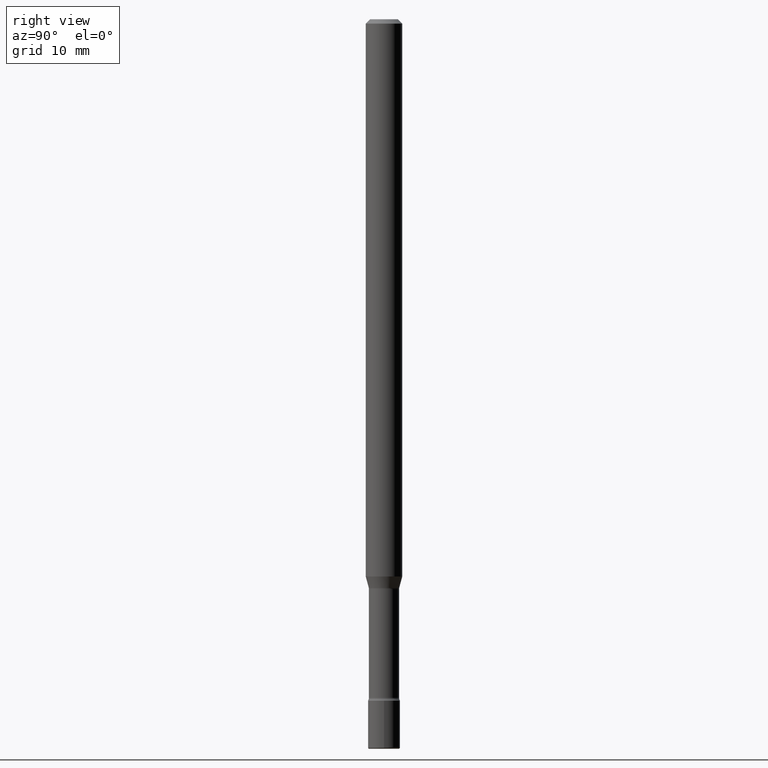
[diagram: clean part render]
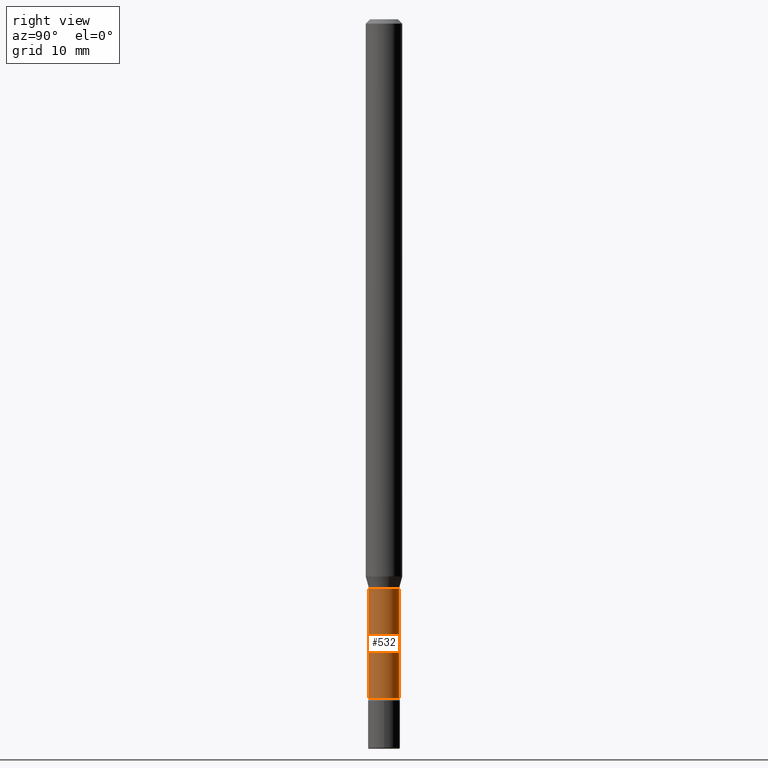
[diagram: same view with one face highlighted and labeled with its STEP entity id]
A machine part, right view. The second image highlights one B-rep face of the part: STEP entity #532.
In plain terms, the highlighted cylindrical surface (edge-blend (fillet) strip) has radius 1.3132 mm, axis along (-0, 0, 1).
Its self-contained STEP definition (entity closure, byte-faithful):
#9 = LINE ( 'NONE', #197, #250 ) ;
#23 = AXIS2_PLACEMENT_3D ( 'NONE', #267, #354, #224 ) ;
#33 = DIRECTION ( 'NONE',  ( -6.982962677686266711E-15, -1.000000000000000000, 5.284038672464726492E-15 ) ) ;
#63 = FACE_OUTER_BOUND ( 'NONE', #220, .T. ) ;
#73 = CYLINDRICAL_SURFACE ( 'NONE', #530, 0.05169999999999998902 ) ;
#104 = CARTESIAN_POINT ( 'NONE',  ( -1.169113584055446105E-44, 1.669184350826100908E-30, 4.780733988912460139E-16 ) ) ;
#108 = DIRECTION ( 'NONE',  ( -2.445442429917292137E-29, 3.491519111159943192E-15, 1.000000000000000000 ) ) ;
#113 = DIRECTION ( 'NONE',  ( -6.982962677686266711E-15, -1.000000000000000000, 3.491519111159944375E-15 ) ) ;
#137 = DIRECTION ( 'NONE',  ( -2.445442429917292137E-29, 3.491519111159943192E-15, 1.000000000000000000 ) ) ;
#162 = EDGE_CURVE ( 'NONE', #419, #368, #477, .T. ) ;
#165 = CARTESIAN_POINT ( 'NONE',  ( -3.610191704363799049E-16, -0.05169999999999998902, 6.585849369382151154E-16 ) ) ;
#169 = VERTEX_POINT ( 'NONE', #567 ) ;
#197 = CARTESIAN_POINT ( 'NONE',  ( 3.673505943879716688E-16, 0.05169999999999998902, 2.975618608442770603E-16 ) ) ;
#220 = EDGE_LOOP ( 'NONE', ( #284, #269, #441, #346 ) ) ;
#224 = DIRECTION ( 'NONE',  ( -6.982962677686266711E-15, -1.000000000000000000, 5.284038672464726492E-15 ) ) ;
#250 = VECTOR ( 'NONE', #108, 39.37007874015748143 ) ;
#254 = DIRECTION ( 'NONE',  ( -2.445442429917292137E-29, 3.491519111159942797E-15, 1.000000000000000000 ) ) ;
#266 = EDGE_CURVE ( 'NONE', #169, #368, #9, .T. ) ;
#267 = CARTESIAN_POINT ( 'NONE',  ( 4.773441967392791886E-29, -6.815357274932263739E-15, -1.951974787463810923 ) ) ;
#268 = CARTESIAN_POINT ( 'NONE',  ( 3.673505943880287133E-16, 0.05169999999999318890, -1.951974787463811367 ) ) ;
#269 = ORIENTED_EDGE ( 'NONE', *, *, #266, .T. ) ;
#274 = VECTOR ( 'NONE', #137, 39.37007874015748143 ) ;
#284 = ORIENTED_EDGE ( 'NONE', *, *, #314, .T. ) ;
#287 = LINE ( 'NONE', #165, #274 ) ;
#288 = VERTEX_POINT ( 'NONE', #495 ) ;
#314 = EDGE_CURVE ( 'NONE', #288, #169, #527, .T. ) ;
#321 = DIRECTION ( 'NONE',  ( -2.445442429917292137E-29, 3.491519111159942797E-15, 1.000000000000000000 ) ) ;
#334 = CARTESIAN_POINT ( 'NONE',  ( -3.610191704363322281E-16, -0.05170000000000680995, -1.951974787463810701 ) ) ;
#346 = ORIENTED_EDGE ( 'NONE', *, *, #394, .F. ) ;
#354 = DIRECTION ( 'NONE',  ( -2.445442429917292137E-29, 3.491519111159942797E-15, 1.000000000000000000 ) ) ;
#368 = VERTEX_POINT ( 'NONE', #268 ) ;
#394 = EDGE_CURVE ( 'NONE', #288, #419, #287, .T. ) ;
#419 = VERTEX_POINT ( 'NONE', #334 ) ;
#441 = ORIENTED_EDGE ( 'NONE', *, *, #162, .F. ) ;
#477 = CIRCLE ( 'NONE', #23, 0.05169999999999999596 ) ;
#495 = CARTESIAN_POINT ( 'NONE',  ( -3.610191704363230083E-16, -0.05170000000000810753, -2.325613307291702458 ) ) ;
#527 = CIRCLE ( 'NONE', #570, 0.05169999999999998902 ) ;
#530 = AXIS2_PLACEMENT_3D ( 'NONE', #104, #321, #113 ) ;
#532 = ADVANCED_FACE ( 'NONE', ( #63 ), #73, .T. ) ;
#551 = CARTESIAN_POINT ( 'NONE',  ( 5.687153457231412235E-29, -8.119923307576861292E-15, -2.325613307291702903 ) ) ;
#567 = CARTESIAN_POINT ( 'NONE',  ( 3.790745495280705543E-16, 0.05169999999999187051, -2.325613307291702903 ) ) ;
#570 = AXIS2_PLACEMENT_3D ( 'NONE', #551, #254, #33 ) ;